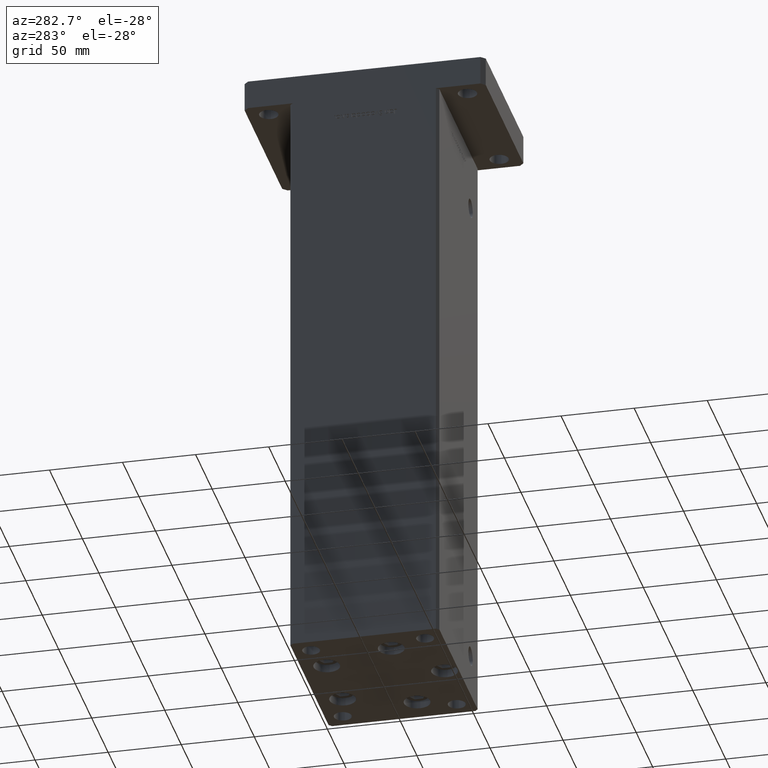
[diagram: clean part render]
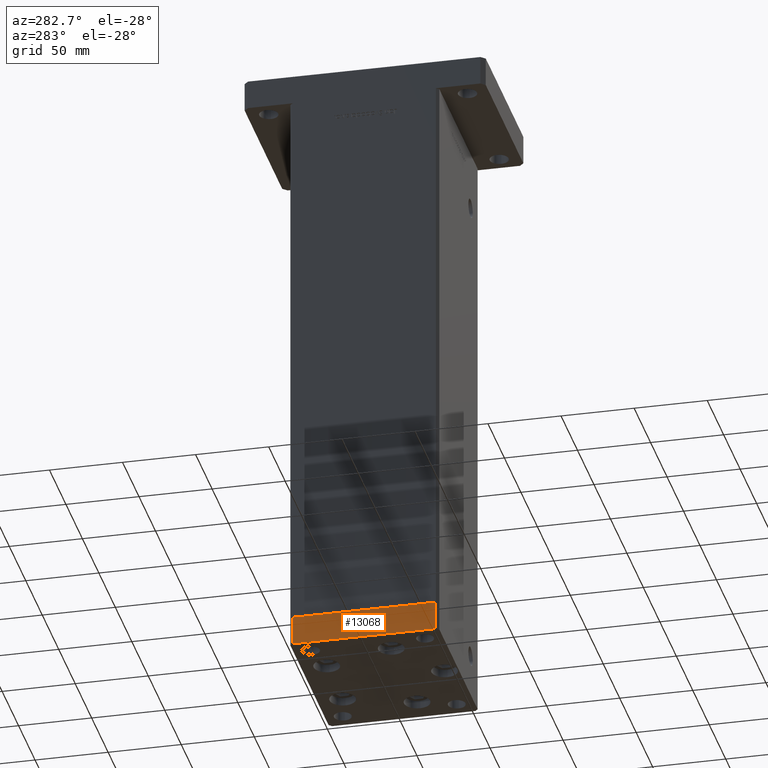
[diagram: same view with one face highlighted and labeled with its STEP entity id]
A machine part, auxiliary view. The second image highlights one B-rep face of the part: STEP entity #13068.
In plain terms, the highlighted planar face has unit normal (-1, 0, 0).
Its self-contained STEP definition (entity closure, byte-faithful):
#526 = LINE ( 'NONE', #8942, #22436 ) ;
#2467 = VECTOR ( 'NONE', #48936, 1000.000000000000000 ) ;
#3313 = EDGE_CURVE ( 'NONE', #28883, #30258, #526, .T. ) ;
#4350 = DIRECTION ( 'NONE',  ( 1.000000000000000000, 7.080503983578804809E-16, -0.000000000000000000 ) ) ;
#5705 = LINE ( 'NONE', #44857, #53820 ) ;
#7047 = DIRECTION ( 'NONE',  ( -7.080503983578803823E-16, 1.000000000000000000, 0.000000000000000000 ) ) ;
#7901 = DIRECTION ( 'NONE',  ( -7.080503983578804809E-16, 1.000000000000000000, 0.000000000000000000 ) ) ;
#8942 = CARTESIAN_POINT ( 'NONE',  ( 59.99999999999994316, 49.00000000000000000, -20.00000000000000000 ) ) ;
#10954 = VERTEX_POINT ( 'NONE', #35501 ) ;
#11707 = ORIENTED_EDGE ( 'NONE', *, *, #34655, .T. ) ;
#13068 = ADVANCED_FACE ( 'NONE', ( #45167 ), #44901, .T. ) ;
#16906 = CARTESIAN_POINT ( 'NONE',  ( 59.99999999999994316, 49.00000000000000000, -20.00000000000000000 ) ) ;
#22436 = VECTOR ( 'NONE', #25535, 1000.000000000000000 ) ;
#23724 = ORIENTED_EDGE ( 'NONE', *, *, #3313, .T. ) ;
#25535 = DIRECTION ( 'NONE',  ( 0.000000000000000000, 0.000000000000000000, 1.000000000000000000 ) ) ;
#27493 = EDGE_CURVE ( 'NONE', #37044, #30258, #45122, .T. ) ;
#28883 = VERTEX_POINT ( 'NONE', #16906 ) ;
#30258 = VERTEX_POINT ( 'NONE', #49845 ) ;
#31057 = ORIENTED_EDGE ( 'NONE', *, *, #48630, .F. ) ;
#34655 = EDGE_CURVE ( 'NONE', #10954, #28883, #5705, .T. ) ;
#35501 = CARTESIAN_POINT ( 'NONE',  ( 60.00000000000001421, -48.99999999999999289, -20.00000000000000000 ) ) ;
#37044 = VERTEX_POINT ( 'NONE', #39742 ) ;
#37615 = VECTOR ( 'NONE', #47300, 1000.000000000000000 ) ;
#39742 = CARTESIAN_POINT ( 'NONE',  ( 60.00000000000001421, -48.99999999999999289, 0.000000000000000000 ) ) ;
#41036 = CARTESIAN_POINT ( 'NONE',  ( 60.00000000000001421, -48.99999999999999289, 0.000000000000000000 ) ) ;
#41410 = ORIENTED_EDGE ( 'NONE', *, *, #27493, .F. ) ;
#41606 = CARTESIAN_POINT ( 'NONE',  ( 60.00000000000001421, -48.99999999999999289, -20.00000000000000000 ) ) ;
#42408 = LINE ( 'NONE', #50306, #37615 ) ;
#43612 = AXIS2_PLACEMENT_3D ( 'NONE', #41606, #4350, #7901 ) ;
#44857 = CARTESIAN_POINT ( 'NONE',  ( 60.00000000000001421, -48.99999999999999289, -20.00000000000000000 ) ) ;
#44901 = PLANE ( 'NONE',  #43612 ) ;
#45122 = LINE ( 'NONE', #41036, #2467 ) ;
#45167 = FACE_OUTER_BOUND ( 'NONE', #53629, .T. ) ;
#47300 = DIRECTION ( 'NONE',  ( 0.000000000000000000, 0.000000000000000000, 1.000000000000000000 ) ) ;
#48630 = EDGE_CURVE ( 'NONE', #10954, #37044, #42408, .T. ) ;
#48936 = DIRECTION ( 'NONE',  ( -7.080503983578803823E-16, 1.000000000000000000, 0.000000000000000000 ) ) ;
#49845 = CARTESIAN_POINT ( 'NONE',  ( 59.99999999999994316, 49.00000000000000000, 0.000000000000000000 ) ) ;
#50306 = CARTESIAN_POINT ( 'NONE',  ( 60.00000000000001421, -48.99999999999999289, -20.00000000000000000 ) ) ;
#53629 = EDGE_LOOP ( 'NONE', ( #41410, #31057, #11707, #23724 ) ) ;
#53820 = VECTOR ( 'NONE', #7047, 1000.000000000000000 ) ;